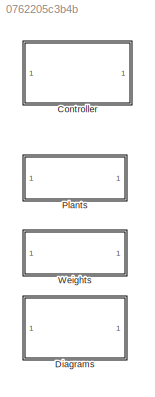
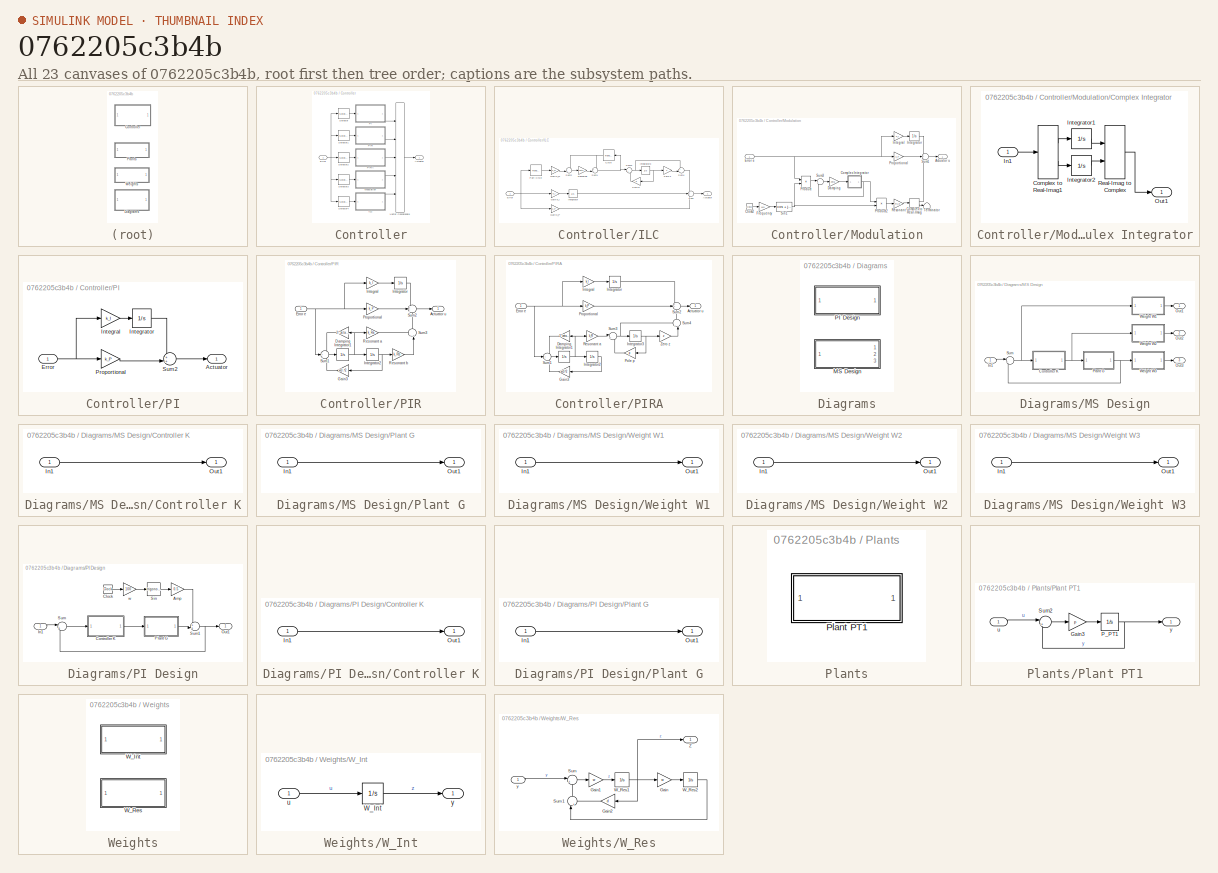
[diagram: thumbnail index - all 23 canvases of the model, root first then tree order]
MODEL slx_0762205c3b4b
KIND library
CONFIG AbsTol = auto
CONFIG EnableMultiTasking = off
CONFIG FixedStep = auto
CONFIG MaxStep = auto
CONFIG MinStep = auto
CONFIG RelTol = 1e-3
CONFIG SampleTimeConstraint = Unconstrained
CONFIG SolverName = VariableStepAuto
CONFIG StartTime = 0.0
CONFIG StopTime = 10.0
BLOCK [SubSystem] Controller
  Ports = [1, 1]
  RequestExecContextInheritance = off
BLOCK [Outport] Controller/Actuator
BLOCK [Inport] Controller/Error
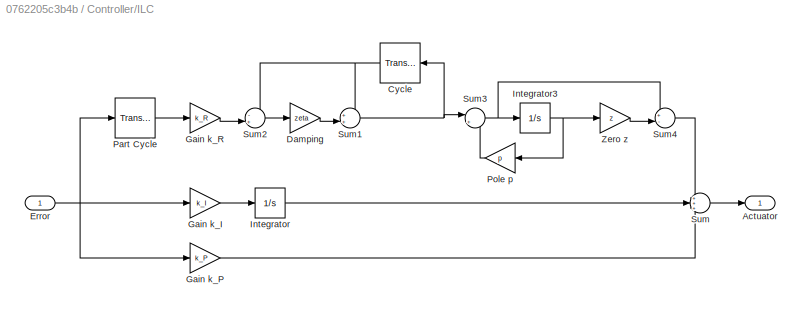
BLOCK [SubSystem] Controller/ILC
  Ports = [1, 1]
  RequestExecContextInheritance = off
BLOCK [Outport] Controller/ILC/Actuator
BLOCK [TransportDelay] Controller/ILC/Cycle
  DelayTime = 2*pi/w0
  PadeOrder = 20
  Ports = [1, 1]
BLOCK [Gain] Controller/ILC/Damping
  Gain = zeta
BLOCK [Inport] Controller/ILC/Error
BLOCK [Gain] Controller/ILC/Gain k_I
  Gain = k_I
BLOCK [Gain] Controller/ILC/Gain k_P
  Gain = k_P
BLOCK [Gain] Controller/ILC/Gain k_R
  Gain = k_R
BLOCK [Integrator] Controller/ILC/Integrator
  Ports = [1, 1]
BLOCK [Integrator] Controller/ILC/Integrator3
  Ports = [1, 1]
BLOCK [TransportDelay] Controller/ILC/Part Cycle
  DelayTime = T1
  PadeOrder = 20
  Ports = [1, 1]
BLOCK [Gain] Controller/ILC/Pole p
  Gain = p
BLOCK [Sum] Controller/ILC/Sum
  Inputs = +++
  Ports = [3, 1]
BLOCK [Sum] Controller/ILC/Sum1
  Inputs = ++|
  Ports = [2, 1]
BLOCK [Sum] Controller/ILC/Sum2
  Inputs = -+|
  Ports = [2, 1]
BLOCK [Sum] Controller/ILC/Sum3
  Inputs = |++
  Ports = [2, 1]
BLOCK [Sum] Controller/ILC/Sum4
  Inputs = +-|
  Ports = [2, 1]
BLOCK [Gain] Controller/ILC/Zero z
  Gain = z
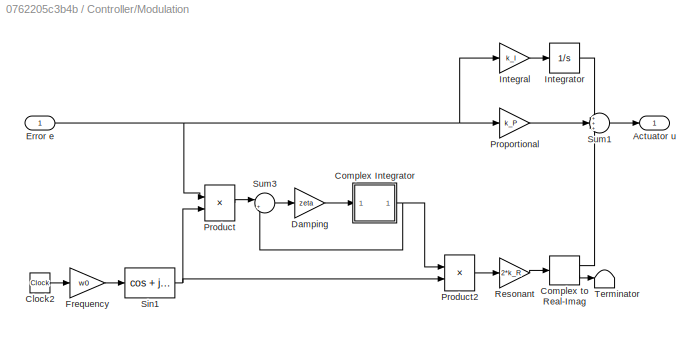
BLOCK [SubSystem] Controller/Modulation
  Ports = [1, 1]
  RequestExecContextInheritance = off
BLOCK [Outport] Controller/Modulation/Actuator u
BLOCK [Clock] Controller/Modulation/Clock2
BLOCK [SubSystem] Controller/Modulation/Complex Integrator
  Ports = [1, 1]
  RequestExecContextInheritance = off
BLOCK [ComplexToRealImag] Controller/Modulation/Complex Integrator/Complex to Real-Imag1
  Ports = [1, 2]
BLOCK [Inport] Controller/Modulation/Complex Integrator/In1
BLOCK [Integrator] Controller/Modulation/Complex Integrator/Integrator1
  Ports = [1, 1]
BLOCK [Integrator] Controller/Modulation/Complex Integrator/Integrator2
  Ports = [1, 1]
BLOCK [Outport] Controller/Modulation/Complex Integrator/Out1
BLOCK [RealImagToComplex] Controller/Modulation/Complex Integrator/Real-Imag to Complex
  Ports = [2, 1]
BLOCK [ComplexToRealImag] Controller/Modulation/Complex to Real-Imag
  Ports = [1, 2]
BLOCK [Gain] Controller/Modulation/Damping
  Gain = zeta
BLOCK [Inport] Controller/Modulation/Error e
BLOCK [Gain] Controller/Modulation/Frequency
  Gain = w0
BLOCK [Gain] Controller/Modulation/Integral
  Gain = k_I
BLOCK [Integrator] Controller/Modulation/Integrator
  Ports = [1, 1]
BLOCK [Product] Controller/Modulation/Product
  Ports = [2, 1]
BLOCK [Product] Controller/Modulation/Product2
  Inputs = */
  Ports = [2, 1]
BLOCK [Gain] Controller/Modulation/Proportional
  Gain = k_P
BLOCK [Gain] Controller/Modulation/Resonant
  Gain = 2*k_R
BLOCK [Trigonometry] Controller/Modulation/Sin1
  Operator = cos + jsin
  Ports = [1, 1]
BLOCK [Sum] Controller/Modulation/Sum1
  Inputs = +++
  Ports = [3, 1]
BLOCK [Sum] Controller/Modulation/Sum3
  Inputs = |+-
  Ports = [2, 1]
BLOCK [Terminator] Controller/Modulation/Terminator
BLOCK [SubSystem] Controller/PI
  Ports = [1, 1]
  RequestExecContextInheritance = off
BLOCK [Outport] Controller/PI/Actuator
BLOCK [Inport] Controller/PI/Error
BLOCK [Gain] Controller/PI/Integral
  Gain = k_I
BLOCK [Integrator] Controller/PI/Integrator
  Ports = [1, 1]
BLOCK [Gain] Controller/PI/Proportional
  Gain = k_P
BLOCK [Sum] Controller/PI/Sum2
  Inputs = ++|
  Ports = [2, 1]
BLOCK [SubSystem] Controller/PIR
  Ports = [1, 1]
  RequestExecContextInheritance = off
BLOCK [Outport] Controller/PIR/Actuator u
BLOCK [Gain] Controller/PIR/Damping
  Gain = 2.*zeta.*w0
BLOCK [Inport] Controller/PIR/Error e
BLOCK [Gain] Controller/PIR/Gain3
  Gain = w0.^2
BLOCK [Gain] Controller/PIR/Integral
  Gain = k_I
BLOCK [Integrator] Controller/PIR/Integrator
  Ports = [1, 1]
BLOCK [Integrator] Controller/PIR/Integrator1
  Ports = [1, 1]
BLOCK [Integrator] Controller/PIR/Integrator2
  Ports = [1, 1]
BLOCK [Gain] Controller/PIR/Proportional
  Gain = k_P
BLOCK [Gain] Controller/PIR/Resonant a
  Gain = k_Ra
BLOCK [Gain] Controller/PIR/Resonant b
  Gain = k_Rb
BLOCK [Sum] Controller/PIR/Sum1
  Inputs = -+-
  Ports = [3, 1]
BLOCK [Sum] Controller/PIR/Sum2
  Inputs = +++
  Ports = [3, 1]
BLOCK [Sum] Controller/PIR/Sum3
  Inputs = ++|
  NameLocation = right
  Ports = [2, 1]
BLOCK [SubSystem] Controller/PIRA
  Ports = [1, 1]
  RequestExecContextInheritance = off
BLOCK [Outport] Controller/PIRA/Actuator u
BLOCK [Gain] Controller/PIRA/Damping
  Gain = 2.*zeta.*w0
BLOCK [Inport] Controller/PIRA/Error e
BLOCK [Gain] Controller/PIRA/Gain3
  Gain = w0.^2
BLOCK [Gain] Controller/PIRA/Integral
  Gain = k_I
BLOCK [Integrator] Controller/PIRA/Integrator
  Ports = [1, 1]
BLOCK [Integrator] Controller/PIRA/Integrator1
  Ports = [1, 1]
BLOCK [Integrator] Controller/PIRA/Integrator2
  Ports = [1, 1]
BLOCK [Integrator] Controller/PIRA/Integrator3
  Ports = [1, 1]
BLOCK [Gain] Controller/PIRA/Pole p
  Gain = p
BLOCK [Gain] Controller/PIRA/Proportional
  Gain = k_P
BLOCK [Gain] Controller/PIRA/Resonant a
  Gain = k_R
BLOCK [Sum] Controller/PIRA/Sum1
  Inputs = -+-
  Ports = [3, 1]
BLOCK [Sum] Controller/PIRA/Sum2
  Inputs = +++
  Ports = [3, 1]
BLOCK [Sum] Controller/PIRA/Sum3
  Inputs = |++
  Ports = [2, 1]
BLOCK [Sum] Controller/PIRA/Sum4
  Inputs = +-|
  NameLocation = right
  Ports = [2, 1]
BLOCK [Gain] Controller/PIRA/Zero z
  Gain = z
BLOCK [Selector] Controller/Selector
  IndexOptions = Select all,Index vector (dialog)
  Indices = 1,1
  InputPortWidth = 3
  NumberOfDimensions = 2
  OutputSizes = 1,1
  Ports = [1, 1]
BLOCK [Selector] Controller/Selector1
  IndexOptions = Select all,Index vector (dialog)
  Indices = 2,2
  InputPortWidth = 3
  NumberOfDimensions = 2
  OutputSizes = 1,1
  Ports = [1, 1]
BLOCK [Selector] Controller/Selector2
  IndexOptions = Select all,Index vector (dialog)
  Indices = 3,3
  InputPortWidth = 3
  NumberOfDimensions = 2
  OutputSizes = 1,1
  Ports = [1, 1]
BLOCK [Selector] Controller/Selector3
  IndexOptions = Select all,Index vector (dialog)
  Indices = 4,4
  InputPortWidth = 3
  NumberOfDimensions = 2
  OutputSizes = 1,1
  Ports = [1, 1]
BLOCK [Selector] Controller/Selector4
  IndexOptions = Select all,Index vector (dialog)
  Indices = 5,5
  InputPortWidth = 3
  NumberOfDimensions = 2
  OutputSizes = 1,1
  Ports = [1, 1]
BLOCK [Concatenate] Controller/Vector Concatenate
  ConcatenateDimension = 2
  Mode = Multidimensional array
  NumInputs = 5
  Ports = [5, 1]
BLOCK [SubSystem] Diagrams
  Ports = []
  RequestExecContextInheritance = off
BLOCK [SubSystem] Diagrams/MS Design
  Ports = [1, 3]
  RequestExecContextInheritance = off
BLOCK [SubSystem] Diagrams/MS Design/Controller K
  Ports = [1, 1]
  RequestExecContextInheritance = off
BLOCK [Inport] Diagrams/MS Design/Controller K/In1
BLOCK [Outport] Diagrams/MS Design/Controller K/Out1
BLOCK [Inport] Diagrams/MS Design/In1
BLOCK [Outport] Diagrams/MS Design/Out1
BLOCK [Outport] Diagrams/MS Design/Out2
  Port = 2
BLOCK [Outport] Diagrams/MS Design/Out3
  Port = 3
BLOCK [SubSystem] Diagrams/MS Design/Plant G
  Ports = [1, 1]
  RequestExecContextInheritance = off
BLOCK [Inport] Diagrams/MS Design/Plant G/In1
BLOCK [Outport] Diagrams/MS Design/Plant G/Out1
BLOCK [Sum] Diagrams/MS Design/Sum
  Inputs = |++
  Ports = [2, 1]
BLOCK [SubSystem] Diagrams/MS Design/Weight W1
  Ports = [1, 1]
  RequestExecContextInheritance = off
BLOCK [Inport] Diagrams/MS Design/Weight W1/In1
BLOCK [Outport] Diagrams/MS Design/Weight W1/Out1
BLOCK [SubSystem] Diagrams/MS Design/Weight W2
  Ports = [1, 1]
  RequestExecContextInheritance = off
BLOCK [Inport] Diagrams/MS Design/Weight W2/In1
BLOCK [Outport] Diagrams/MS Design/Weight W2/Out1
BLOCK [SubSystem] Diagrams/MS Design/Weight W3
  Ports = [1, 1]
  RequestExecContextInheritance = off
BLOCK [Inport] Diagrams/MS Design/Weight W3/In1
BLOCK [Outport] Diagrams/MS Design/Weight W3/Out1
BLOCK [SubSystem] Diagrams/PI Design
  Ports = [1, 1]
  RequestExecContextInheritance = off
BLOCK [Gain] Diagrams/PI Design/Amp
  Gain = 0.5
BLOCK [Clock] Diagrams/PI Design/Clock
BLOCK [SubSystem] Diagrams/PI Design/Controller K
  Ports = [1, 1]
  RequestExecContextInheritance = off
BLOCK [Inport] Diagrams/PI Design/Controller K/In1
BLOCK [Outport] Diagrams/PI Design/Controller K/Out1
BLOCK [Inport] Diagrams/PI Design/In1
BLOCK [Outport] Diagrams/PI Design/Out1
BLOCK [SubSystem] Diagrams/PI Design/Plant G
  Ports = [1, 1]
  RequestExecContextInheritance = off
BLOCK [Inport] Diagrams/PI Design/Plant G/In1
BLOCK [Outport] Diagrams/PI Design/Plant G/Out1
BLOCK [Trigonometry] Diagrams/PI Design/Sin
  Ports = [1, 1]
BLOCK [Sum] Diagrams/PI Design/Sum
  Inputs = |++
  Ports = [2, 1]
BLOCK [Sum] Diagrams/PI Design/Sum1
  Inputs = ++|
  Ports = [2, 1]
BLOCK [Gain] Diagrams/PI Design/w
  Gain = 100
BLOCK [SubSystem] Plants
  Ports = []
  RequestExecContextInheritance = off
BLOCK [SubSystem] Plants/Plant PT1
  Ports = [1, 1]
  RequestExecContextInheritance = off
BLOCK [Gain] Plants/Plant PT1/Gain3
  Gain = p
BLOCK [Integrator] Plants/Plant PT1/P_PT1
  Ports = [1, 1]
BLOCK [Sum] Plants/Plant PT1/Sum2
  Inputs = |+-
  Ports = [2, 1]
BLOCK [Inport] Plants/Plant PT1/u
BLOCK [Outport] Plants/Plant PT1/y
BLOCK [SubSystem] Weights
  Ports = []
  RequestExecContextInheritance = off
BLOCK [SubSystem] Weights/W_Int
  Ports = [1, 1]
  RequestExecContextInheritance = off
BLOCK [Integrator] Weights/W_Int/W_Int
  Ports = [1, 1]
BLOCK [Inport] Weights/W_Int/u
BLOCK [Outport] Weights/W_Int/y
BLOCK [SubSystem] Weights/W_Res
  Ports = [1, 1]
  RequestExecContextInheritance = off
BLOCK [Gain] Weights/W_Res/Gain
  Gain = w
BLOCK [Gain] Weights/W_Res/Gain1
  Gain = w
BLOCK [Gain] Weights/W_Res/Gain2
  Gain = d
BLOCK [Sum] Weights/W_Res/Sum
  Inputs = |+-
  Ports = [2, 1]
BLOCK [Sum] Weights/W_Res/Sum1
  Inputs = |++
  NameLocation = right
  Ports = [2, 1]
BLOCK [Integrator] Weights/W_Res/W_Res1
  Ports = [1, 1]
BLOCK [Integrator] Weights/W_Res/W_Res2
  Ports = [1, 1]
BLOCK [Outport] Weights/W_Res/Z
BLOCK [Inport] Weights/W_Res/y
NET Controller/Error:1 -> Controller/Selector1:1, Controller/Selector2:1, Controller/Selector3:1, Controller/Selector4:1, Controller/Selector:1
NET Controller/ILC/Cycle:1 -> Controller/ILC/Sum1:1, Controller/ILC/Sum2:1
LINE Controller/ILC/Damping:1 -> Controller/ILC/Sum1:2
NET Controller/ILC/Error:1 -> Controller/ILC/Gain k_I:1, Controller/ILC/Gain k_P:1, Controller/ILC/Part Cycle:1
LINE Controller/ILC/Gain k_I:1 -> Controller/ILC/Integrator:1
LINE Controller/ILC/Gain k_P:1 -> Controller/ILC/Sum:3
LINE Controller/ILC/Gain k_R:1 -> Controller/ILC/Sum2:2
NET Controller/ILC/Integrator3:1 -> Controller/ILC/Pole p:1, Controller/ILC/Zero z:1
LINE Controller/ILC/Integrator:1 -> Controller/ILC/Sum:2
LINE Controller/ILC/Part Cycle:1 -> Controller/ILC/Gain k_R:1
LINE Controller/ILC/Pole p:1 -> Controller/ILC/Sum3:2
NET Controller/ILC/Sum1:1 -> Controller/ILC/Cycle:1, Controller/ILC/Sum3:1
LINE Controller/ILC/Sum2:1 -> Controller/ILC/Damping:1
NET Controller/ILC/Sum3:1 -> Controller/ILC/Integrator3:1, Controller/ILC/Sum4:1
LINE Controller/ILC/Sum4:1 -> Controller/ILC/Sum:1
LINE Controller/ILC/Sum:1 -> Controller/ILC/Actuator:1
LINE Controller/ILC/Zero z:1 -> Controller/ILC/Sum4:2
LINE Controller/ILC:1 -> Controller/Vector Concatenate:5
LINE Controller/Modulation/Clock2:1 -> Controller/Modulation/Frequency:1
LINE Controller/Modulation/Complex Integrator/Complex to Real-Imag1:1 -> Controller/Modulation/Complex Integrator/Integrator1:1
LINE Controller/Modulation/Complex Integrator/Complex to Real-Imag1:2 -> Controller/Modulation/Complex Integrator/Integrator2:1
LINE Controller/Modulation/Complex Integrator/In1:1 -> Controller/Modulation/Complex Integrator/Complex to Real-Imag1:1
LINE Controller/Modulation/Complex Integrator/Integrator1:1 -> Controller/Modulation/Complex Integrator/Real-Imag to Complex:1
LINE Controller/Modulation/Complex Integrator/Integrator2:1 -> Controller/Modulation/Complex Integrator/Real-Imag to Complex:2
LINE Controller/Modulation/Complex Integrator/Real-Imag to Complex:1 -> Controller/Modulation/Complex Integrator/Out1:1
NET Controller/Modulation/Complex Integrator:1 -> Controller/Modulation/Product2:1, Controller/Modulation/Sum3:2
LINE Controller/Modulation/Complex to Real-Imag:1 -> Controller/Modulation/Sum1:3
LINE Controller/Modulation/Complex to Real-Imag:2 -> Controller/Modulation/Terminator:1
LINE Controller/Modulation/Damping:1 -> Controller/Modulation/Complex Integrator:1
NET Controller/Modulation/Error e:1 -> Controller/Modulation/Integral:1, Controller/Modulation/Product:1, Controller/Modulation/Proportional:1
LINE Controller/Modulation/Frequency:1 -> Controller/Modulation/Sin1:1
LINE Controller/Modulation/Integral:1 -> Controller/Modulation/Integrator:1
LINE Controller/Modulation/Integrator:1 -> Controller/Modulation/Sum1:1
LINE Controller/Modulation/Product2:1 -> Controller/Modulation/Resonant:1
LINE Controller/Modulation/Product:1 -> Controller/Modulation/Sum3:1
LINE Controller/Modulation/Proportional:1 -> Controller/Modulation/Sum1:2
LINE Controller/Modulation/Resonant:1 -> Controller/Modulation/Complex to Real-Imag:1
NET Controller/Modulation/Sin1:1 -> Controller/Modulation/Product2:2, Controller/Modulation/Product:2
LINE Controller/Modulation/Sum1:1 -> Controller/Modulation/Actuator u:1
LINE Controller/Modulation/Sum3:1 -> Controller/Modulation/Damping:1
LINE Controller/Modulation:1 -> Controller/Vector Concatenate:4
NET Controller/PI/Error:1 -> Controller/PI/Integral:1, Controller/PI/Proportional:1
LINE Controller/PI/Integral:1 -> Controller/PI/Integrator:1
LINE Controller/PI/Integrator:1 -> Controller/PI/Sum2:1
LINE Controller/PI/Proportional:1 -> Controller/PI/Sum2:2
LINE Controller/PI/Sum2:1 -> Controller/PI/Actuator:1
LINE Controller/PI:1 -> Controller/Vector Concatenate:1
LINE Controller/PIR/Damping:1 -> Controller/PIR/Sum1:1
NET Controller/PIR/Error e:1 -> Controller/PIR/Integral:1, Controller/PIR/Proportional:1, Controller/PIR/Sum1:2
LINE Controller/PIR/Gain3:1 -> Controller/PIR/Sum1:3
LINE Controller/PIR/Integral:1 -> Controller/PIR/Integrator:1
NET Controller/PIR/Integrator1:1 -> Controller/PIR/Damping:1, Controller/PIR/Integrator2:1, Controller/PIR/Resonant a:1
NET Controller/PIR/Integrator2:1 -> Controller/PIR/Gain3:1, Controller/PIR/Resonant b:1
LINE Controller/PIR/Integrator:1 -> Controller/PIR/Sum2:1
LINE Controller/PIR/Proportional:1 -> Controller/PIR/Sum2:2
LINE Controller/PIR/Resonant a:1 -> Controller/PIR/Sum3:1
LINE Controller/PIR/Resonant b:1 -> Controller/PIR/Sum3:2
LINE Controller/PIR/Sum1:1 -> Controller/PIR/Integrator1:1
LINE Controller/PIR/Sum2:1 -> Controller/PIR/Actuator u:1
LINE Controller/PIR/Sum3:1 -> Controller/PIR/Sum2:3
LINE Controller/PIR:1 -> Controller/Vector Concatenate:2
LINE Controller/PIRA/Damping:1 -> Controller/PIRA/Sum1:1
NET Controller/PIRA/Error e:1 -> Controller/PIRA/Integral:1, Controller/PIRA/Proportional:1, Controller/PIRA/Sum1:2
LINE Controller/PIRA/Gain3:1 -> Controller/PIRA/Sum1:3
LINE Controller/PIRA/Integral:1 -> Controller/PIRA/Integrator:1
NET Controller/PIRA/Integrator1:1 -> Controller/PIRA/Damping:1, Controller/PIRA/Integrator2:1, Controller/PIRA/Resonant a:1
LINE Controller/PIRA/Integrator2:1 -> Controller/PIRA/Gain3:1
NET Controller/PIRA/Integrator3:1 -> Controller/PIRA/Pole p:1, Controller/PIRA/Zero z:1
LINE Controller/PIRA/Integrator:1 -> Controller/PIRA/Sum2:1
LINE Controller/PIRA/Pole p:1 -> Controller/PIRA/Sum3:2
LINE Controller/PIRA/Proportional:1 -> Controller/PIRA/Sum2:2
LINE Controller/PIRA/Resonant a:1 -> Controller/PIRA/Sum3:1
LINE Controller/PIRA/Sum1:1 -> Controller/PIRA/Integrator1:1
LINE Controller/PIRA/Sum2:1 -> Controller/PIRA/Actuator u:1
NET Controller/PIRA/Sum3:1 -> Controller/PIRA/Integrator3:1, Controller/PIRA/Sum4:1
LINE Controller/PIRA/Sum4:1 -> Controller/PIRA/Sum2:3
LINE Controller/PIRA/Zero z:1 -> Controller/PIRA/Sum4:2
LINE Controller/PIRA:1 -> Controller/Vector Concatenate:3
LINE Controller/Selector1:1 -> Controller/PIR:1
LINE Controller/Selector2:1 -> Controller/PIRA:1
LINE Controller/Selector3:1 -> Controller/Modulation:1
LINE Controller/Selector4:1 -> Controller/ILC:1
LINE Controller/Selector:1 -> Controller/PI:1
LINE Controller/Vector Concatenate:1 -> Controller/Actuator:1
LINE Diagrams/MS Design/Controller K/In1:1 -> Diagrams/MS Design/Controller K/Out1:1
NET Diagrams/MS Design/Controller K:1 -> Diagrams/MS Design/Plant G:1, Diagrams/MS Design/Weight W2:1
LINE Diagrams/MS Design/In1:1 -> Diagrams/MS Design/Sum:1
LINE Diagrams/MS Design/Plant G/In1:1 -> Diagrams/MS Design/Plant G/Out1:1
NET Diagrams/MS Design/Plant G:1 -> Diagrams/MS Design/Sum:2, Diagrams/MS Design/Weight W3:1
NET Diagrams/MS Design/Sum:1 -> Diagrams/MS Design/Controller K:1, Diagrams/MS Design/Weight W1:1
LINE Diagrams/MS Design/Weight W1/In1:1 -> Diagrams/MS Design/Weight W1/Out1:1
LINE Diagrams/MS Design/Weight W1:1 -> Diagrams/MS Design/Out1:1
LINE Diagrams/MS Design/Weight W2/In1:1 -> Diagrams/MS Design/Weight W2/Out1:1
LINE Diagrams/MS Design/Weight W2:1 -> Diagrams/MS Design/Out2:1
LINE Diagrams/MS Design/Weight W3/In1:1 -> Diagrams/MS Design/Weight W3/Out1:1
LINE Diagrams/MS Design/Weight W3:1 -> Diagrams/MS Design/Out3:1
LINE Diagrams/PI Design/Amp:1 -> Diagrams/PI Design/Sum1:1
LINE Diagrams/PI Design/Clock:1 -> Diagrams/PI Design/w:1
LINE Diagrams/PI Design/Controller K/In1:1 -> Diagrams/PI Design/Controller K/Out1:1
LINE Diagrams/PI Design/Controller K:1 -> Diagrams/PI Design/Plant G:1
LINE Diagrams/PI Design/In1:1 -> Diagrams/PI Design/Sum:1
LINE Diagrams/PI Design/Plant G/In1:1 -> Diagrams/PI Design/Plant G/Out1:1
LINE Diagrams/PI Design/Plant G:1 -> Diagrams/PI Design/Sum1:2
LINE Diagrams/PI Design/Sin:1 -> Diagrams/PI Design/Amp:1
NET Diagrams/PI Design/Sum1:1 -> Diagrams/PI Design/Out1:1, Diagrams/PI Design/Sum:2
LINE Diagrams/PI Design/Sum:1 -> Diagrams/PI Design/Controller K:1
LINE Diagrams/PI Design/w:1 -> Diagrams/PI Design/Sin:1
LINE Plants/Plant PT1/Gain3:1 -> Plants/Plant PT1/P_PT1:1
NET Plants/Plant PT1/P_PT1:1 -> Plants/Plant PT1/Sum2:2, Plants/Plant PT1/y:1
LINE Plants/Plant PT1/Sum2:1 -> Plants/Plant PT1/Gain3:1
LINE Plants/Plant PT1/u:1 -> Plants/Plant PT1/Sum2:1
LINE Weights/W_Int/W_Int:1 -> Weights/W_Int/y:1
LINE Weights/W_Int/u:1 -> Weights/W_Int/W_Int:1
LINE Weights/W_Res/Gain1:1 -> Weights/W_Res/W_Res1:1
LINE Weights/W_Res/Gain2:1 -> Weights/W_Res/Sum1:2
LINE Weights/W_Res/Gain:1 -> Weights/W_Res/W_Res2:1
LINE Weights/W_Res/Sum1:1 -> Weights/W_Res/Sum:2
LINE Weights/W_Res/Sum:1 -> Weights/W_Res/Gain1:1
NET Weights/W_Res/W_Res1:1 -> Weights/W_Res/Gain2:1, Weights/W_Res/Gain:1, Weights/W_Res/Z:1
LINE Weights/W_Res/W_Res2:1 -> Weights/W_Res/Sum1:1
LINE Weights/W_Res/y:1 -> Weights/W_Res/Sum:1
note: NET lines group one-source signal fan-out (src -> all destinations, sorted); 1:1 wires keep LINE
